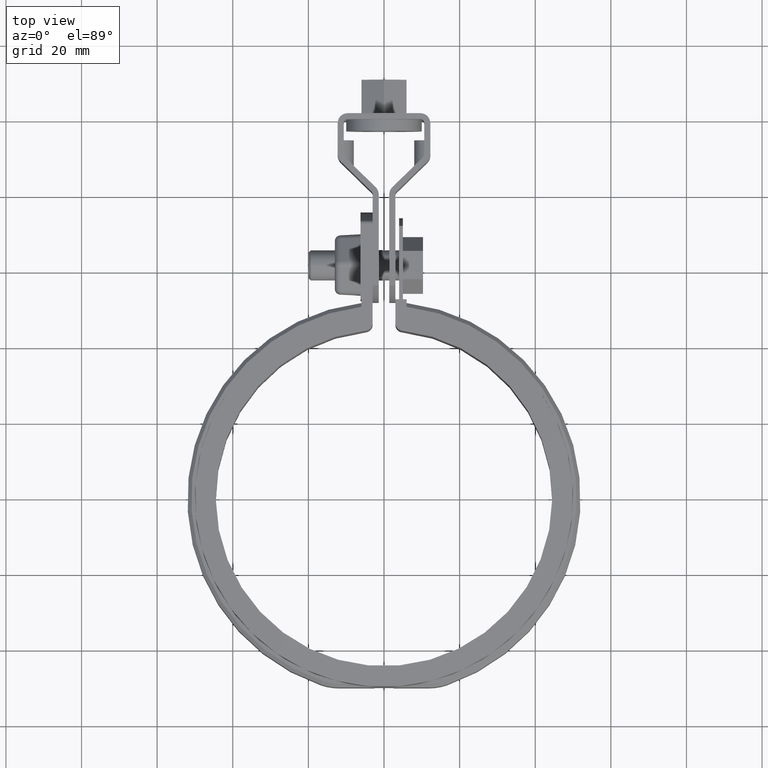
[diagram: clean part render]
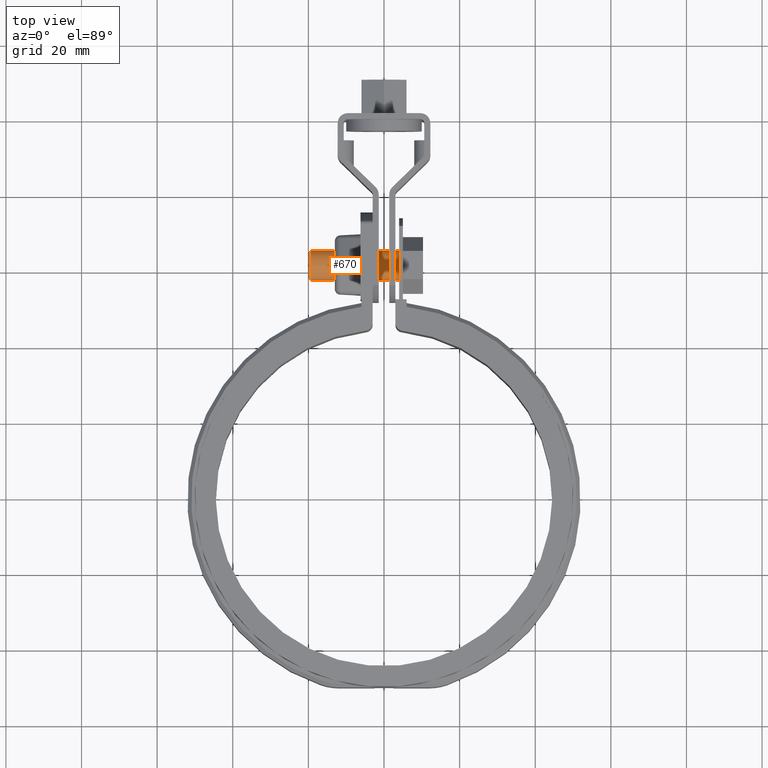
[diagram: same view with one face highlighted and labeled with its STEP entity id]
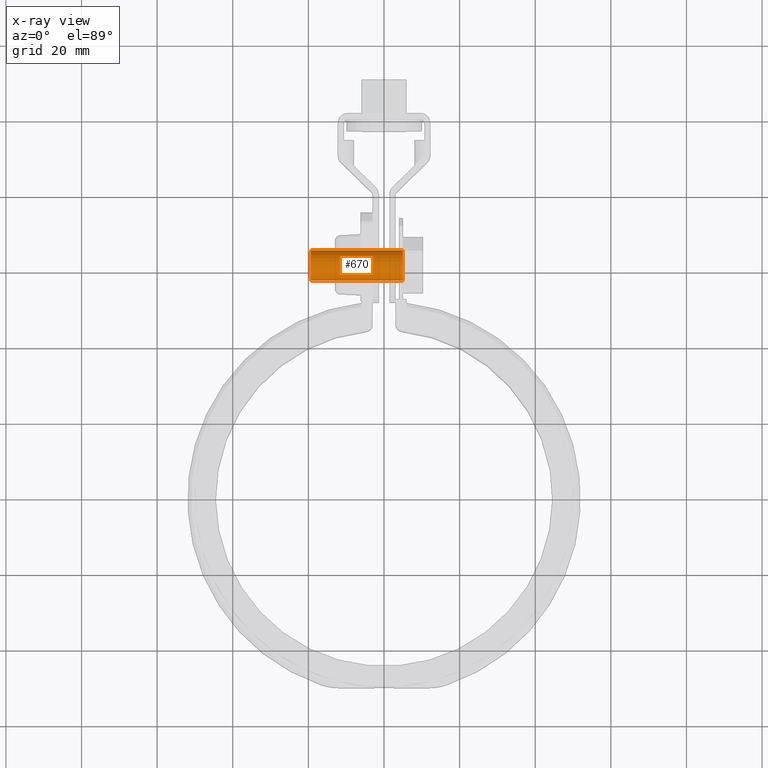
[diagram: x-ray of the same camera — body ghosted, the highlighted face saturated]
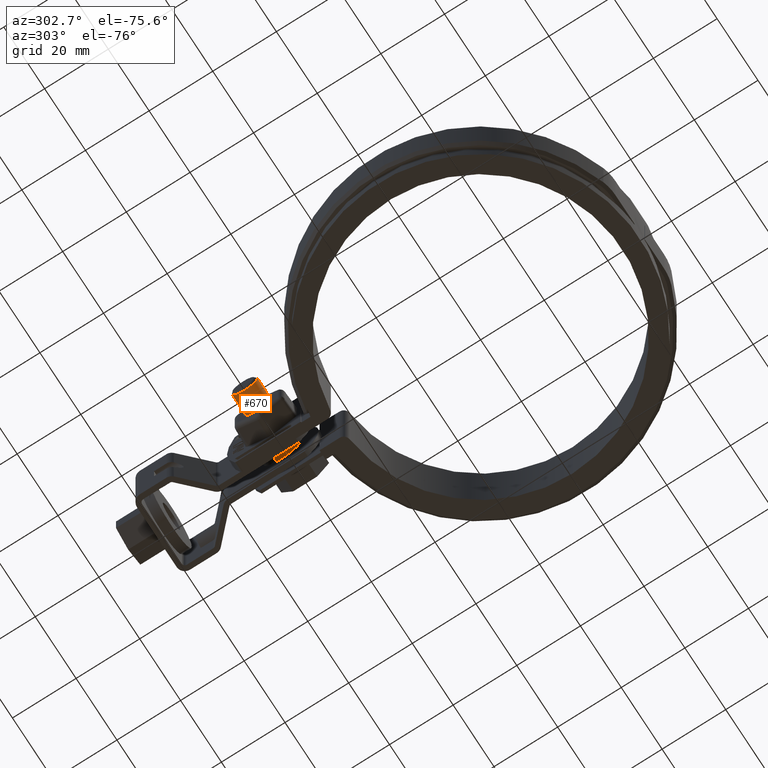
[diagram: same view with one face highlighted and labeled with its STEP entity id]
A machine part, top view. The second image highlights one B-rep face of the part: STEP entity #670.
The next image is the same camera in x-ray: the body ghosted, the highlighted face saturated — about 0% of this face is hidden behind the body in this view.
A second angle (auxiliary view) of the same face is appended — the face is thin or edge-on in the first view.
In plain terms, the highlighted cylindrical surface (bore or boss wall) has radius 4 mm, axis along (1, -0, 0).
Its self-contained STEP definition (entity closure, byte-faithful):
#670 = ADVANCED_FACE( '', ( #1268, #1269 ), #1270, .T. );
#1268 = FACE_OUTER_BOUND( '', #2608, .T. );
#1269 = FACE_OUTER_BOUND( '', #2609, .T. );
#1270 = CYLINDRICAL_SURFACE( '', #2610, 4.00000000000000 );
#2608 = EDGE_LOOP( '', ( #6128 ) );
#2609 = EDGE_LOOP( '', ( #6129 ) );
#2610 = AXIS2_PLACEMENT_3D( '', #6130, #6131, #6132 );
#6128 = ORIENTED_EDGE( '', *, *, #7963, .T. );
#6129 = ORIENTED_EDGE( '', *, *, #7953, .F. );
#6130 = CARTESIAN_POINT( '', ( 16.2273837494972, 61.7361090692280, -1.73472347597681E-015 ) );
#6131 = DIRECTION( '', ( 1.00000000000000, -2.17859177455234E-087, 2.51763863661437E-103 ) );
#6132 = DIRECTION( '', ( 0.000000000000000, 1.15562661441320E-016, 1.00000000000000 ) );
#7953 = EDGE_CURVE( '', #9358, #9358, #9359, .T. );
#7963 = EDGE_CURVE( '', #9375, #9375, #9376, .T. );
#9358 = VERTEX_POINT( '', #13413 );
#9359 = CIRCLE( '', #13414, 4.00000000000000 );
#9375 = VERTEX_POINT( '', #13439 );
#9376 = CIRCLE( '', #13440, 4.00000000000000 );
#13413 = CARTESIAN_POINT( '', ( 5.00000000000000, 61.7361090692280, 4.00000000000000 ) );
#13414 = AXIS2_PLACEMENT_3D( '', #15151, #15152, #15153 );
#13439 = CARTESIAN_POINT( '', ( -19.3750000000000, 61.7361090692280, -4.00000000000000 ) );
#13440 = AXIS2_PLACEMENT_3D( '', #15163, #15164, #15165 );
#15151 = CARTESIAN_POINT( '', ( 5.00000000000000, 61.7361090692280, -1.73472347597681E-015 ) );
#15152 = DIRECTION( '', ( 1.00000000000000, -2.17859177455234E-087, 2.51763863661437E-103 ) );
#15153 = DIRECTION( '', ( 0.000000000000000, 1.15562661441320E-016, 1.00000000000000 ) );
#15163 = CARTESIAN_POINT( '', ( -19.3750000000000, 61.7361090692280, -1.73472347597681E-015 ) );
#15164 = DIRECTION( '', ( 1.00000000000000, -2.17859177455234E-087, 2.51763863661437E-103 ) );
#15165 = DIRECTION( '', ( 0.000000000000000, -1.15562661441320E-016, -1.00000000000000 ) );